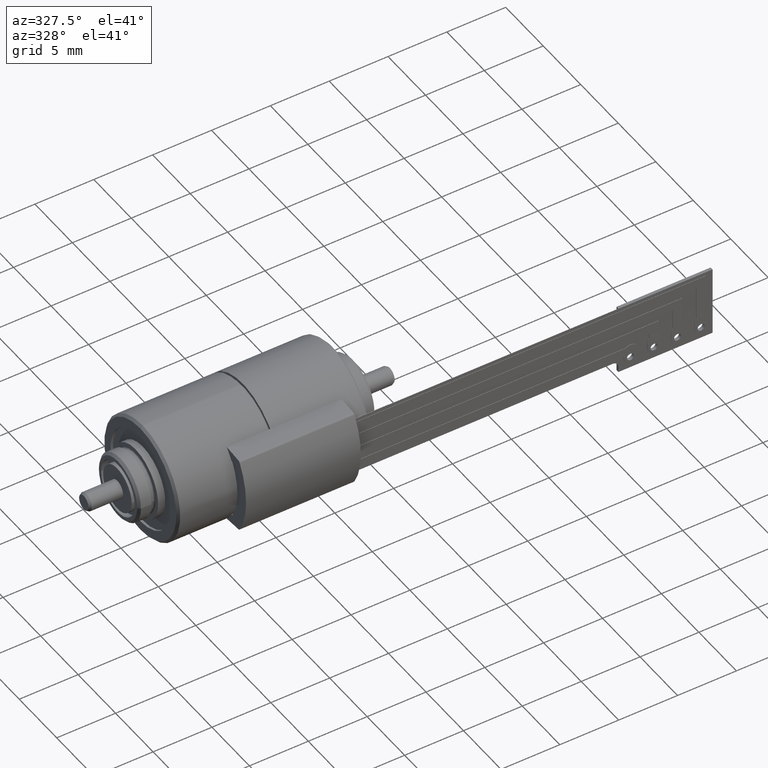
[diagram: clean part render]
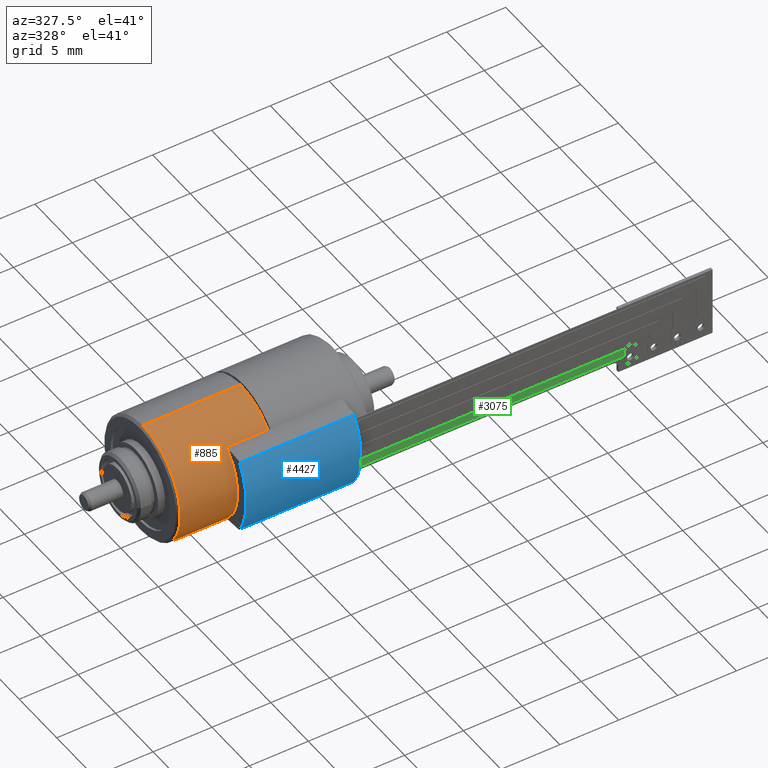
[diagram: same view with three faces highlighted in distinct colors, each labeled with its STEP entity id]
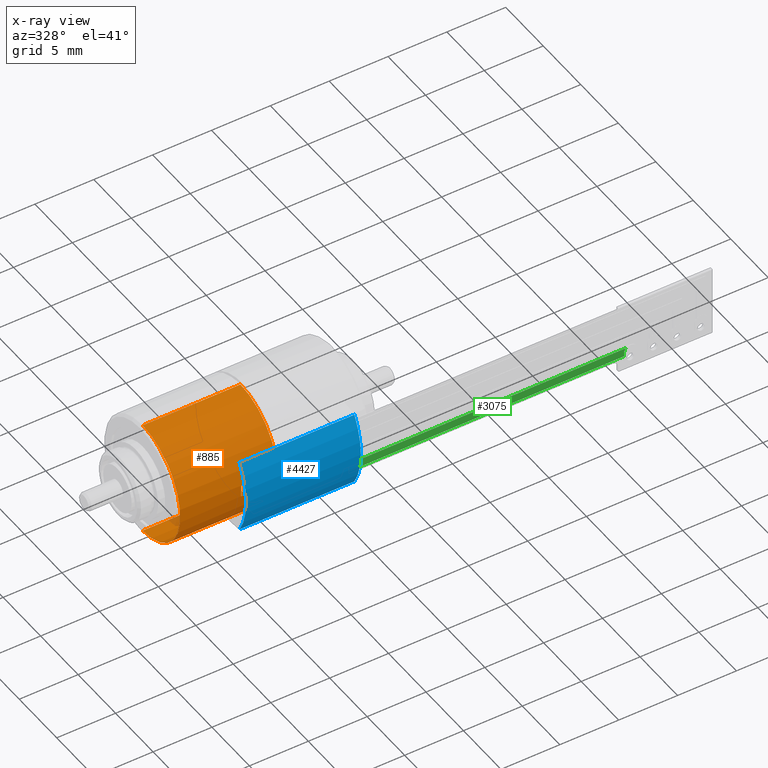
[diagram: x-ray of the same camera — body ghosted, the three highlighted faces saturated]
A machine part, auxiliary view with three faces highlighted in distinct colors.
The next image is the same camera in x-ray (body ghosted, the three faces saturated) — at least one of them is partly hidden behind the body in this view.
Their STEP definitions:

[orange] entity #885 — the highlighted cylindrical surface (partial cylindrical patch) has radius 5 mm, axis along (1, 0, 0).
#248=CARTESIAN_POINT('',(8.3E0,0.E0,0.E0));
#249=DIRECTION('',(-1.E0,0.E0,0.E0));
#250=DIRECTION('',(0.E0,0.E0,-1.E0));
#251=AXIS2_PLACEMENT_3D('',#248,#249,#250);
#262=DIRECTION('',(-1.E0,0.E0,0.E0));
#263=VECTOR('',#262,8.3E0);
#264=CARTESIAN_POINT('',(8.3E0,0.E0,5.E0));
#265=LINE('',#264,#263);
#266=DIRECTION('',(-1.E0,0.E0,0.E0));
#267=VECTOR('',#266,8.3E0);
#268=CARTESIAN_POINT('',(8.3E0,0.E0,-5.E0));
#269=LINE('',#268,#267);
#270=DIRECTION('',(1.E0,1.689725948549E-14,0.E0));
#271=VECTOR('',#270,3.101244128216E0);
#272=CARTESIAN_POINT('',(0.E0,-4.974937185533E0,-5.E-1));
#273=LINE('',#272,#271);
#274=DIRECTION('',(-1.E0,-1.689725948549E-14,0.E0));
#275=VECTOR('',#274,3.101244128216E0);
#276=CARTESIAN_POINT('',(3.101244128216E0,-4.974937185533E0,5.E-1));
#277=LINE('',#276,#275);
#292=CARTESIAN_POINT('',(0.E0,0.E0,0.E0));
#293=DIRECTION('',(1.E0,0.E0,0.E0));
#294=DIRECTION('',(0.E0,-9.949874371066E-1,-1.E-1));
#295=AXIS2_PLACEMENT_3D('',#292,#293,#294);
#302=CARTESIAN_POINT('',(0.E0,0.E0,0.E0));
#303=DIRECTION('',(1.E0,0.E0,0.E0));
#304=DIRECTION('',(0.E0,0.E0,1.E0));
#305=AXIS2_PLACEMENT_3D('',#302,#303,#304);
#323=CARTESIAN_POINT('',(3.101244128216E0,-4.974937185533E0,5.E-1));
#324=CARTESIAN_POINT('',(3.103558767642E0,-4.986082373647E0,3.891067784222E-1));
#325=CARTESIAN_POINT('',(3.106593538808E0,-5.000921154991E0,1.671599723760E-1));
#326=CARTESIAN_POINT('',(3.106593538808E0,-5.000921154991E0,
-1.671599723761E-1));
#327=CARTESIAN_POINT('',(3.103558767642E0,-4.986082373647E0,
-3.891067784223E-1));
#328=CARTESIAN_POINT('',(3.101244128216E0,-4.974937185533E0,-5.E-1));
#485=CARTESIAN_POINT('',(8.3E0,0.E0,-5.E0));
#486=VERTEX_POINT('',#485);
#487=CARTESIAN_POINT('',(8.3E0,0.E0,5.E0));
#488=VERTEX_POINT('',#487);
#489=CARTESIAN_POINT('',(0.E0,0.E0,5.E0));
#490=VERTEX_POINT('',#489);
#491=CARTESIAN_POINT('',(0.E0,0.E0,-5.E0));
#492=VERTEX_POINT('',#491);
#493=CARTESIAN_POINT('',(0.E0,-4.974937185533E0,-5.E-1));
#494=VERTEX_POINT('',#493);
#495=CARTESIAN_POINT('',(3.101244128216E0,-4.974937185533E0,-5.E-1));
#496=VERTEX_POINT('',#495);
#497=VERTEX_POINT('',#323);
#498=CARTESIAN_POINT('',(0.E0,-4.974937185533E0,5.E-1));
#499=VERTEX_POINT('',#498);
#865=CARTESIAN_POINT('',(9.246546227418E-1,0.E0,0.E0));
#866=DIRECTION('',(-1.E0,0.E0,0.E0));
#867=DIRECTION('',(0.E0,0.E0,1.E0));
#868=AXIS2_PLACEMENT_3D('',#865,#866,#867);
#869=CYLINDRICAL_SURFACE('',#868,5.E0);
#870=ORIENTED_EDGE('',*,*,#860,.T.);
#872=ORIENTED_EDGE('',*,*,#871,.F.);
#874=ORIENTED_EDGE('',*,*,#873,.T.);
#876=ORIENTED_EDGE('',*,*,#875,.F.);
#878=ORIENTED_EDGE('',*,*,#877,.T.);
#880=ORIENTED_EDGE('',*,*,#879,.F.);
#881=ORIENTED_EDGE('',*,*,#856,.F.);
#882=ORIENTED_EDGE('',*,*,#829,.F.);
#883=EDGE_LOOP('',(#870,#872,#874,#876,#878,#880,#881,#882));
#884=FACE_OUTER_BOUND('',#883,.F.);
#885=ADVANCED_FACE('',(#884),#869,.T.);
#252=CIRCLE('',#251,5.E0);
#296=CIRCLE('',#295,5.E0);
#306=CIRCLE('',#305,5.E0);
#329=B_SPLINE_CURVE_WITH_KNOTS('',3,(#323,#324,#325,#326,#327,#328),
.UNSPECIFIED.,.F.,.F.,(4,1,1,4),(0.E0,3.333333333333E-1,6.666666666667E-1,1.E0),
.UNSPECIFIED.);
#829=EDGE_CURVE('',#486,#488,#252,.T.);
#856=EDGE_CURVE('',#488,#490,#265,.T.);
#860=EDGE_CURVE('',#486,#492,#269,.T.);
#871=EDGE_CURVE('',#494,#492,#296,.T.);
#873=EDGE_CURVE('',#494,#496,#273,.T.);
#875=EDGE_CURVE('',#497,#496,#329,.T.);
#877=EDGE_CURVE('',#497,#499,#277,.T.);
#879=EDGE_CURVE('',#490,#499,#306,.T.);

[blue] entity #4427 — the highlighted cylindrical surface (partial cylindrical patch) has radius 6.25 mm, axis along (-1, 0, 0).
#3931=CARTESIAN_POINT('',(1.203135204749E-14,1.835011829311E-14,
-8.348877145181E-14));
#3932=DIRECTION('',(0.E0,0.E0,1.E0));
#3933=DIRECTION('',(8.623156255585E-1,-5.063711701091E-1,0.E0));
#3934=AXIS2_PLACEMENT_3D('',#3931,#3932,#3933);
#3936=CARTESIAN_POINT('',(1.203135204749E-14,1.835011829311E-14,
-8.348877145181E-14));
#3937=DIRECTION('',(0.E0,0.E0,1.E0));
#3938=DIRECTION('',(1.E0,0.E0,0.E0));
#3939=AXIS2_PLACEMENT_3D('',#3936,#3937,#3938);
#3946=CARTESIAN_POINT('',(1.203135204749E-14,1.835011829311E-14,9.75E0));
#3947=DIRECTION('',(0.E0,0.E0,-1.E0));
#3948=DIRECTION('',(8.623156255597E-1,5.063711701070E-1,0.E0));
#3949=AXIS2_PLACEMENT_3D('',#3946,#3947,#3948);
#3951=CARTESIAN_POINT('',(1.203135204749E-14,1.835011829311E-14,9.75E0));
#3952=DIRECTION('',(0.E0,0.E0,-1.E0));
#3953=DIRECTION('',(1.E0,0.E0,0.E0));
#3954=AXIS2_PLACEMENT_3D('',#3951,#3952,#3953);
#3998=DIRECTION('',(0.E0,1.352764054620E-14,-1.E0));
#3999=VECTOR('',#3998,9.75E0);
#4000=CARTESIAN_POINT('',(5.389472659743E0,-3.164819813178E0,9.75E0));
#4001=LINE('',#4000,#3999);
#4232=DIRECTION('',(0.E0,0.E0,1.E0));
#4233=VECTOR('',#4232,9.75E0);
#4234=CARTESIAN_POINT('',(5.389472659747E0,3.164819813170E0,
-6.920390186830E-14));
#4235=LINE('',#4234,#4233);
#4258=CARTESIAN_POINT('',(5.389472659741E0,-3.164819813182E0,
-9.769962616701E-14));
#4259=VERTEX_POINT('',#4258);
#4260=CARTESIAN_POINT('',(6.25E0,1.035651251581E-14,-8.348877145181E-14));
#4261=VERTEX_POINT('',#4260);
#4262=CARTESIAN_POINT('',(5.389472659748E0,3.164819813169E0,
-8.348877145181E-14));
#4263=VERTEX_POINT('',#4262);
#4266=CARTESIAN_POINT('',(5.389472659748E0,3.164819813169E0,9.75E0));
#4267=CARTESIAN_POINT('',(6.25E0,1.835011829311E-14,9.75E0));
#4268=VERTEX_POINT('',#4266);
#4269=VERTEX_POINT('',#4267);
#4270=CARTESIAN_POINT('',(5.389472659740E0,-3.164819813182E0,9.75E0));
#4271=VERTEX_POINT('',#4270);
#4412=CARTESIAN_POINT('',(1.203135204749E-14,1.835011829311E-14,9.75E0));
#4413=DIRECTION('',(0.E0,0.E0,-1.E0));
#4414=DIRECTION('',(-1.E0,0.E0,0.E0));
#4415=AXIS2_PLACEMENT_3D('',#4412,#4413,#4414);
#4416=CYLINDRICAL_SURFACE('',#4415,6.25E0);
#4417=ORIENTED_EDGE('',*,*,#4361,.F.);
#4418=ORIENTED_EDGE('',*,*,#4359,.F.);
#4420=ORIENTED_EDGE('',*,*,#4419,.F.);
#4421=ORIENTED_EDGE('',*,*,#4389,.F.);
#4422=ORIENTED_EDGE('',*,*,#4387,.F.);
#4424=ORIENTED_EDGE('',*,*,#4423,.F.);
#4425=EDGE_LOOP('',(#4417,#4418,#4420,#4421,#4422,#4424));
#4426=FACE_OUTER_BOUND('',#4425,.F.);
#4427=ADVANCED_FACE('',(#4426),#4416,.T.);
#3935=CIRCLE('',#3934,6.25E0);
#3940=CIRCLE('',#3939,6.25E0);
#3950=CIRCLE('',#3949,6.25E0);
#3955=CIRCLE('',#3954,6.25E0);
#4359=EDGE_CURVE('',#4259,#4261,#3935,.T.);
#4361=EDGE_CURVE('',#4261,#4263,#3940,.T.);
#4387=EDGE_CURVE('',#4268,#4269,#3950,.T.);
#4389=EDGE_CURVE('',#4269,#4271,#3955,.T.);
#4419=EDGE_CURVE('',#4271,#4259,#4001,.T.);
#4423=EDGE_CURVE('',#4263,#4268,#4235,.T.);

[green] entity #3075 — the highlighted planar face has unit normal (0, -1, 0).
#1974=DIRECTION('',(0.E0,-1.E0,0.E0));
#1975=VECTOR('',#1974,7.000000000001E-1);
#1976=CARTESIAN_POINT('',(8.1E0,1.E0,6.E-2));
#1977=LINE('',#1976,#1975);
#2150=DIRECTION('',(1.E0,0.E0,0.E0));
#2151=VECTOR('',#2150,2.335E1);
#2152=CARTESIAN_POINT('',(8.1E0,3.E-1,6.E-2));
#2153=LINE('',#2152,#2151);
#2158=CARTESIAN_POINT('',(3.2E1,6.E-1,6.E-2));
#2159=DIRECTION('',(0.E0,0.E0,1.E0));
#2160=DIRECTION('',(-6.863485850238E-1,7.272727272735E-1,0.E0));
#2161=AXIS2_PLACEMENT_3D('',#2158,#2159,#2160);
#2163=DIRECTION('',(-1.E0,-3.141520608472E-14,0.E0));
#2164=VECTOR('',#2163,2.352250827824E1);
#2165=CARTESIAN_POINT('',(3.162250827824E1,1.000000000001E0,6.E-2));
#2166=LINE('',#2165,#2164);
#2191=DIRECTION('',(0.E0,1.E0,0.E0));
#2192=VECTOR('',#2191,3.E-1);
#2193=CARTESIAN_POINT('',(3.145E1,3.E-1,6.E-2));
#2194=LINE('',#2193,#2192);
#2656=CARTESIAN_POINT('',(8.1E0,1.E0,6.E-2));
#2657=VERTEX_POINT('',#2656);
#2658=CARTESIAN_POINT('',(8.1E0,3.E-1,6.E-2));
#2659=VERTEX_POINT('',#2658);
#2732=CARTESIAN_POINT('',(3.145E1,3.E-1,6.E-2));
#2733=VERTEX_POINT('',#2732);
#2734=CARTESIAN_POINT('',(3.162250827824E1,1.000000000001E0,6.E-2));
#2735=VERTEX_POINT('',#2734);
#2736=CARTESIAN_POINT('',(3.145E1,6.E-1,6.E-2));
#2737=VERTEX_POINT('',#2736);
#3060=CARTESIAN_POINT('',(3.2E1,6.E-1,6.E-2));
#3061=DIRECTION('',(0.E0,0.E0,1.E0));
#3062=DIRECTION('',(1.E0,0.E0,0.E0));
#3063=AXIS2_PLACEMENT_3D('',#3060,#3061,#3062);
#3064=PLANE('',#3063);
#3065=ORIENTED_EDGE('',*,*,#2927,.F.);
#3067=ORIENTED_EDGE('',*,*,#3066,.F.);
#3069=ORIENTED_EDGE('',*,*,#3068,.T.);
#3071=ORIENTED_EDGE('',*,*,#3070,.F.);
#3072=ORIENTED_EDGE('',*,*,#3052,.F.);
#3073=EDGE_LOOP('',(#3065,#3067,#3069,#3071,#3072));
#3074=FACE_OUTER_BOUND('',#3073,.F.);
#3075=ADVANCED_FACE('',(#3074),#3064,.T.);
#2162=CIRCLE('',#2161,5.5E-1);
#2927=EDGE_CURVE('',#2657,#2659,#1977,.T.);
#3052=EDGE_CURVE('',#2659,#2733,#2153,.T.);
#3066=EDGE_CURVE('',#2735,#2657,#2166,.T.);
#3068=EDGE_CURVE('',#2735,#2737,#2162,.T.);
#3070=EDGE_CURVE('',#2733,#2737,#2194,.T.);